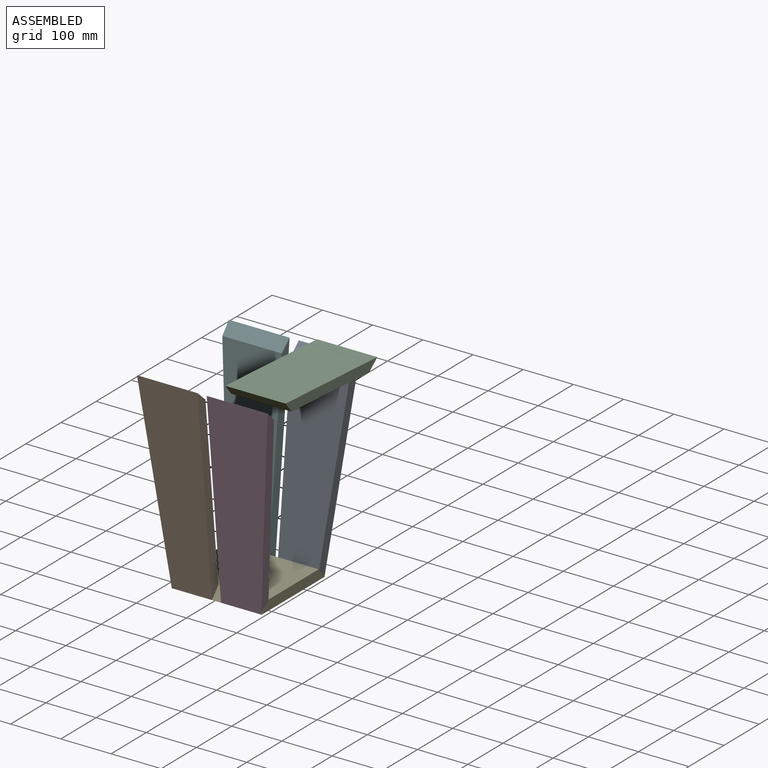
[diagram: assembled view]
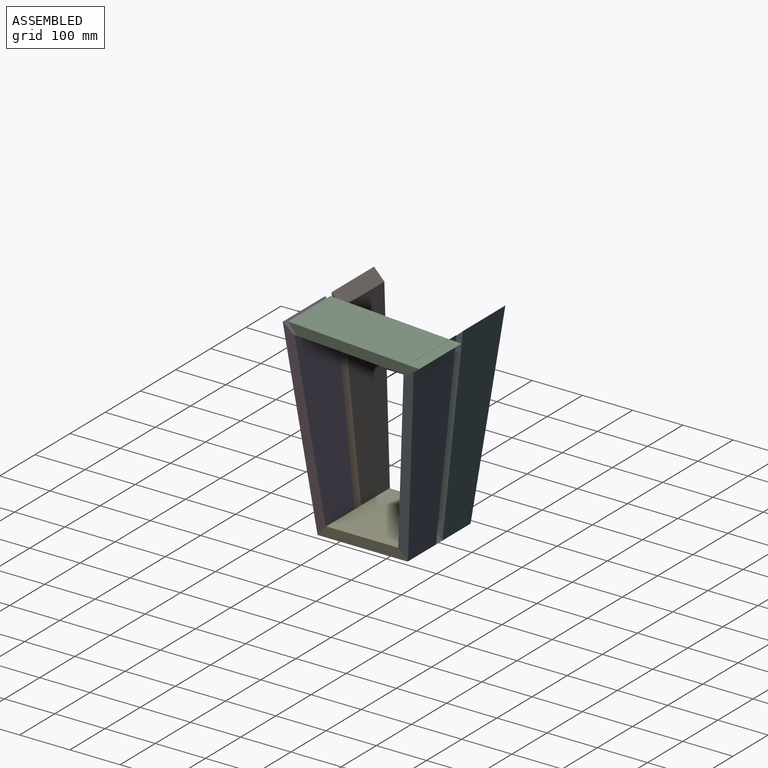
[diagram: assembled view, second angle]
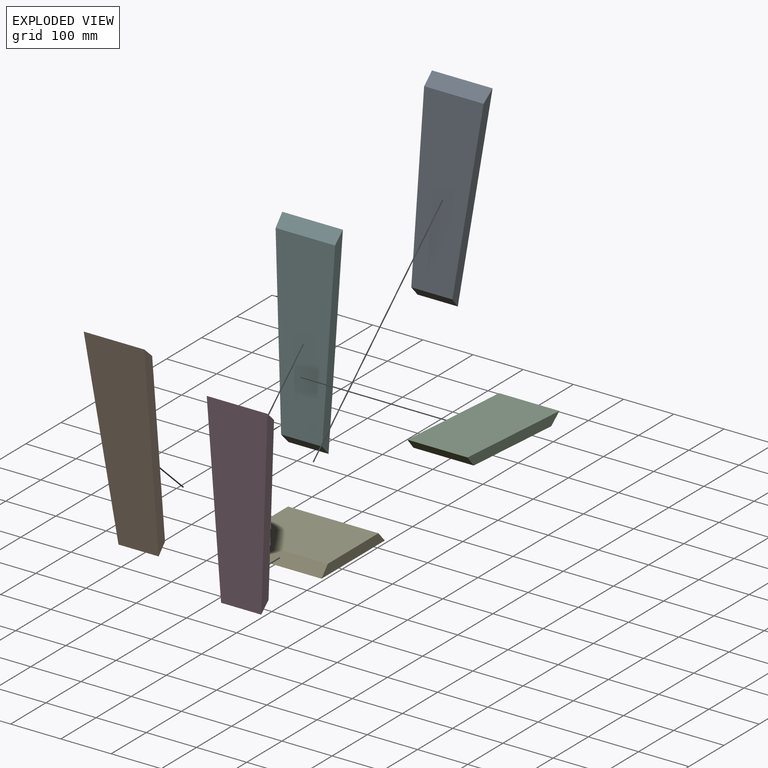
[diagram: exploded view]
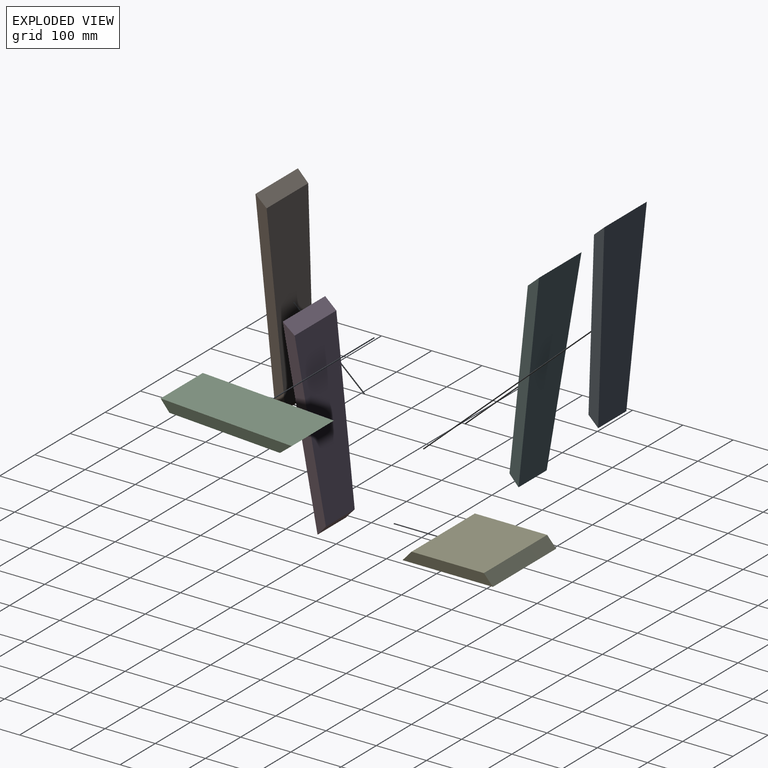
[diagram: exploded view, second angle]
ASSEMBLY  parts=6 mates=4
PART A: 6 faces, bbox 120.7x20x390 mm
  f0: plane 390x40.75mm, normal (-0.99,0,-0.1), area 7438.1mm2, adj f1,f3,f4,f5
  f1: plane 120.75x22.21mm, normal (0,0.74,0.67), area 3574.4mm2, adj f0,f2,f4,f5
  f2: plane 390x20mm, normal (1,0,0), area 7397.8mm2, adj f1,f3,f4,f5
  f3: plane 81.88x20mm, normal (0,0.67,-0.74), area 2178.3mm2, adj f0,f2,f4,f5
  f4: plane 390x120.75mm, normal (0,-1,0), area 39145.6mm2, adj f0,f1,f2,f3
  f5: plane 349.78x118.43mm, normal (0,1,0), area 35031.8mm2, adj f0,f1,f2,f3
PART B: same geometry as A
PART C: 6 faces, bbox 120x261.6x20 mm
  f0: plane 261.57x20mm, normal (1,0,0), area 4822.7mm2, adj f1,f2,f3,f4
  f1: plane 220.7x120mm, normal (0,0,-1), area 26484.5mm2, adj f0,f2,f3,f5
  f2: plane 120x22.21mm, normal (0,0.67,-0.74), area 3586.7mm2, adj f0,f1,f4,f5
  f3: plane 120x20mm, normal (0,-0.73,-0.68), area 3281.6mm2, adj f0,f1,f4,f5
  f4: plane 261.57x120mm, normal (0,0,1), area 31388mm2, adj f0,f2,f3,f5
  f5: plane 261.57x20mm, normal (-1,0,0), area 4822.7mm2, adj f1,f2,f3,f4
PART D: 6 faces, bbox 120.7x20x390 mm
  f0: plane 390x40.75mm, normal (0.99,0,-0.1), area 7438.1mm2, adj f1,f3,f4,f5
  f1: plane 120.75x22.21mm, normal (0,0.74,0.67), area 3574.4mm2, adj f0,f2,f4,f5
  f2: plane 390x20mm, normal (-1,0,0), area 7397.8mm2, adj f1,f3,f4,f5
  f3: plane 81.88x20mm, normal (0,0.67,-0.74), area 2178.3mm2, adj f0,f2,f4,f5
  f4: plane 390x120.75mm, normal (0,-1,0), area 39145.6mm2, adj f0,f1,f2,f3
  f5: plane 349.78x118.43mm, normal (0,1,0), area 35031.8mm2, adj f0,f1,f2,f3
PART E: 6 faces, bbox 180x180x20 mm
  f0: plane 180x180mm, normal (0,0,-1), area 32400mm2, adj f1,f3,f4,f5
  f1: plane 180x20mm, normal (0.74,0,0.67), area 4844.3mm2, adj f0,f2,f4,f5
  f2: plane 180x143.98mm, normal (0,0,1), area 25917.1mm2, adj f1,f3,f4,f5
  f3: plane 180x20mm, normal (-0.74,0,0.67), area 4844.3mm2, adj f0,f2,f4,f5
  f4: plane 180x20mm, normal (0,-1,0), area 3239.8mm2, adj f0,f1,f2,f3
  f5: plane 180x20mm, normal (0,1,0), area 3239.8mm2, adj f0,f1,f2,f3
PART F: same geometry as D
PLACE A rot(axis=(0,-0.05,-1),180deg) t=(-156.78,-274.69,-174.15)mm
PLACE B rot(axis=(1,0,0),6deg) t=(-14.9,-414.91,-174.15)mm
PLACE C rot(axis=(-1,0,0),3.5deg) t=(-196.87,-452.6,205.9)mm
PLACE D rot(axis=(1,0,0),6deg) t=(3.22,-414.91,-174.15)mm
PLACE E rot(axis=(0,0,-1),90deg) t=(4.16,-434.8,-176.24)mm fixed
PLACE F rot(axis=(0,0.05,1),180deg) t=(-174.9,-274.69,-174.15)mm
MATE fastened B.f3 <-> E.f1  axis (0,0.74,-0.67) through (-175.84,-425.8,-166.24)mm
MATE fastened F.f3 <-> E.f3  axis (0,-0.74,-0.67) through (-175.84,-263.8,-166.24)mm
MATE fastened A.f3 <-> E.f3  axis (0,-0.74,-0.67) through (4.16,-263.8,-166.24)mm
MATE fastened E.f1 <-> D.f3  axis (0,-0.74,0.67) through (4.16,-425.8,-166.24)mm
